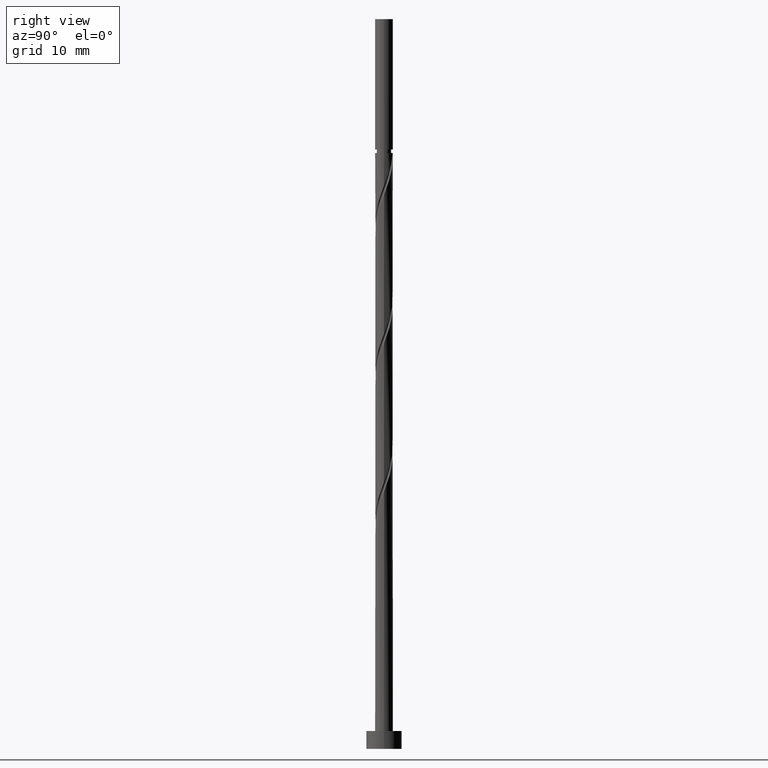
[diagram: clean part render]
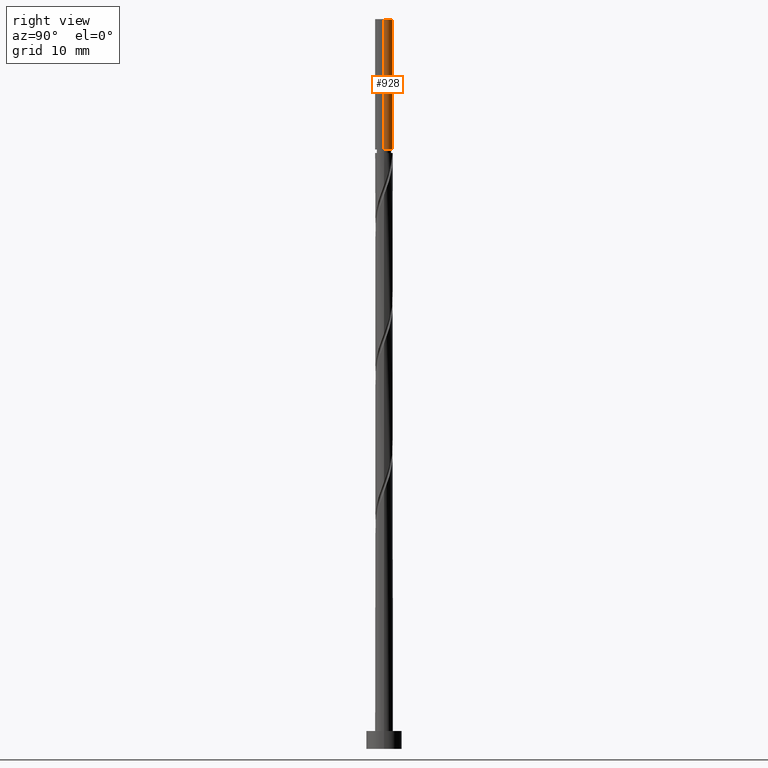
[diagram: same view with one face highlighted and labeled with its STEP entity id]
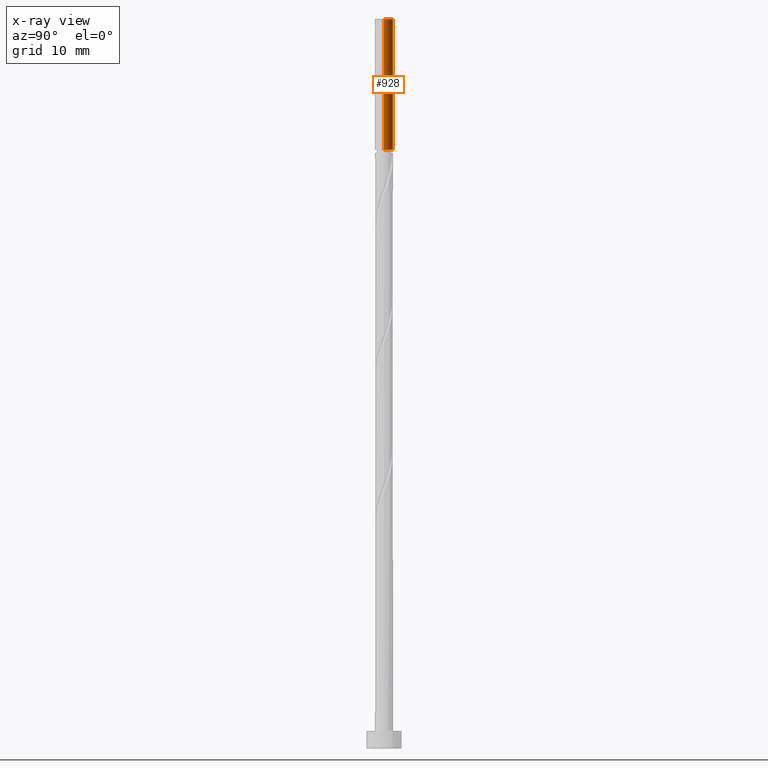
[diagram: x-ray of the same camera — body ghosted, the highlighted face saturated]
A machine part, right view. The second image highlights one B-rep face of the part: STEP entity #928.
The next image is the same camera in x-ray: the body ghosted, the highlighted face saturated — about 0% of this face is hidden behind the body in this view.
In plain terms, the highlighted cylindrical surface (edge-blend (fillet) strip) has radius 1 mm, axis along (-0, -0, -1).
Its self-contained STEP definition (entity closure, byte-faithful):
#46 = DIRECTION ( 'NONE',  ( -0.000000000000000000, -0.000000000000000000, -1.000000000000000000 ) ) ;
#70 = LINE ( 'NONE', #983, #318 ) ;
#131 = CARTESIAN_POINT ( 'NONE',  ( 1.000000000000003775, 1.224646799147357645E-16, 67.35403719374632203 ) ) ;
#135 = EDGE_CURVE ( 'NONE', #1213, #734, #706, .T. ) ;
#168 = AXIS2_PLACEMENT_3D ( 'NONE', #1259, #1229, #220 ) ;
#220 = DIRECTION ( 'NONE',  ( 1.000000000000000000, 0.000000000000000000, 0.000000000000000000 ) ) ;
#256 = VECTOR ( 'NONE', #266, 1000.000000000000000 ) ;
#259 = EDGE_LOOP ( 'NONE', ( #758, #958, #1199, #359 ) ) ;
#266 = DIRECTION ( 'NONE',  ( -0.000000000000000000, -0.000000000000000000, -1.000000000000000000 ) ) ;
#316 = CARTESIAN_POINT ( 'NONE',  ( 0.000000000000000000, 0.000000000000000000, 82.00000000000000000 ) ) ;
#318 = VECTOR ( 'NONE', #46, 1000.000000000000000 ) ;
#341 = EDGE_CURVE ( 'NONE', #734, #438, #70, .T. ) ;
#359 = ORIENTED_EDGE ( 'NONE', *, *, #341, .F. ) ;
#438 = VERTEX_POINT ( 'NONE', #1384 ) ;
#524 = CIRCLE ( 'NONE', #592, 1.000000000000003775 ) ;
#527 = VERTEX_POINT ( 'NONE', #131 ) ;
#572 = CARTESIAN_POINT ( 'NONE',  ( 1.000000000000000000, 1.224646799147353207E-16, 82.00000000000000000 ) ) ;
#592 = AXIS2_PLACEMENT_3D ( 'NONE', #1098, #643, #1100 ) ;
#632 = LINE ( 'NONE', #719, #256 ) ;
#638 = AXIS2_PLACEMENT_3D ( 'NONE', #316, #1260, #667 ) ;
#643 = DIRECTION ( 'NONE',  ( -0.000000000000000000, -0.000000000000000000, -1.000000000000000000 ) ) ;
#667 = DIRECTION ( 'NONE',  ( -1.000000000000000000, 0.000000000000000000, 0.000000000000000000 ) ) ;
#706 = CIRCLE ( 'NONE', #168, 1.000000000000000000 ) ;
#719 = CARTESIAN_POINT ( 'NONE',  ( 1.000000000000000000, 1.224646799147353207E-16, 82.00000000000000000 ) ) ;
#734 = VERTEX_POINT ( 'NONE', #805 ) ;
#758 = ORIENTED_EDGE ( 'NONE', *, *, #135, .F. ) ;
#791 = CYLINDRICAL_SURFACE ( 'NONE', #638, 1.000000000000000000 ) ;
#805 = CARTESIAN_POINT ( 'NONE',  ( -1.000000000000000000, 0.000000000000000000, 82.00000000000000000 ) ) ;
#928 = ADVANCED_FACE ( 'NONE', ( #1486 ), #791, .T. ) ;
#958 = ORIENTED_EDGE ( 'NONE', *, *, #1446, .T. ) ;
#983 = CARTESIAN_POINT ( 'NONE',  ( -1.000000000000000000, 0.000000000000000000, 82.00000000000000000 ) ) ;
#1098 = CARTESIAN_POINT ( 'NONE',  ( 0.000000000000000000, 0.000000000000000000, 67.35403719374632203 ) ) ;
#1100 = DIRECTION ( 'NONE',  ( -1.000000000000000000, 0.000000000000000000, 0.000000000000000000 ) ) ;
#1110 = EDGE_CURVE ( 'NONE', #438, #527, #524, .T. ) ;
#1199 = ORIENTED_EDGE ( 'NONE', *, *, #1110, .F. ) ;
#1213 = VERTEX_POINT ( 'NONE', #572 ) ;
#1229 = DIRECTION ( 'NONE',  ( 0.000000000000000000, 0.000000000000000000, 1.000000000000000000 ) ) ;
#1259 = CARTESIAN_POINT ( 'NONE',  ( 0.000000000000000000, 0.000000000000000000, 82.00000000000000000 ) ) ;
#1260 = DIRECTION ( 'NONE',  ( -0.000000000000000000, -0.000000000000000000, -1.000000000000000000 ) ) ;
#1384 = CARTESIAN_POINT ( 'NONE',  ( -1.000000000000003775, 0.000000000000000000, 67.35403719374632203 ) ) ;
#1446 = EDGE_CURVE ( 'NONE', #1213, #527, #632, .T. ) ;
#1486 = FACE_OUTER_BOUND ( 'NONE', #259, .T. ) ;